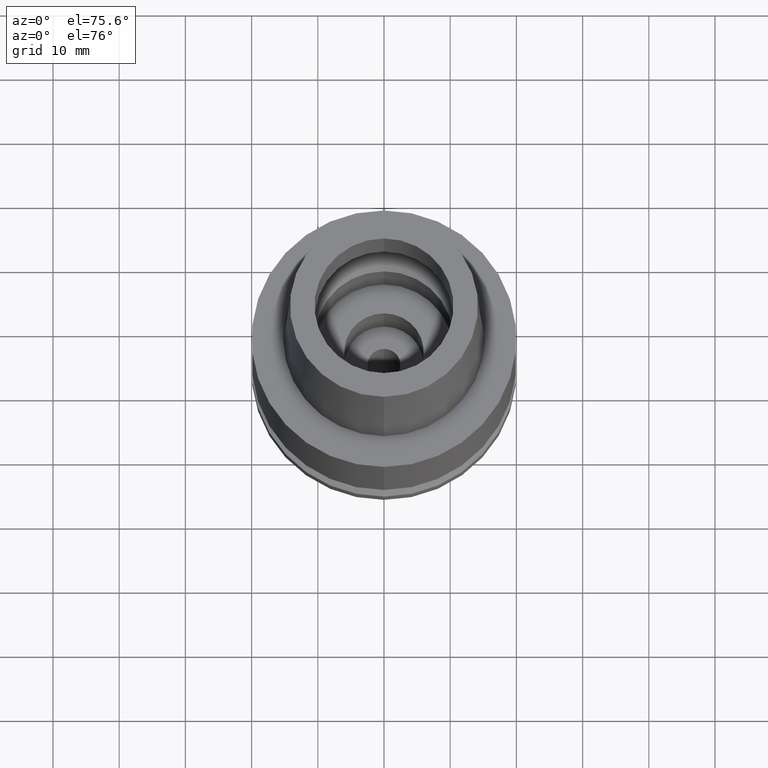
[diagram: clean part render]
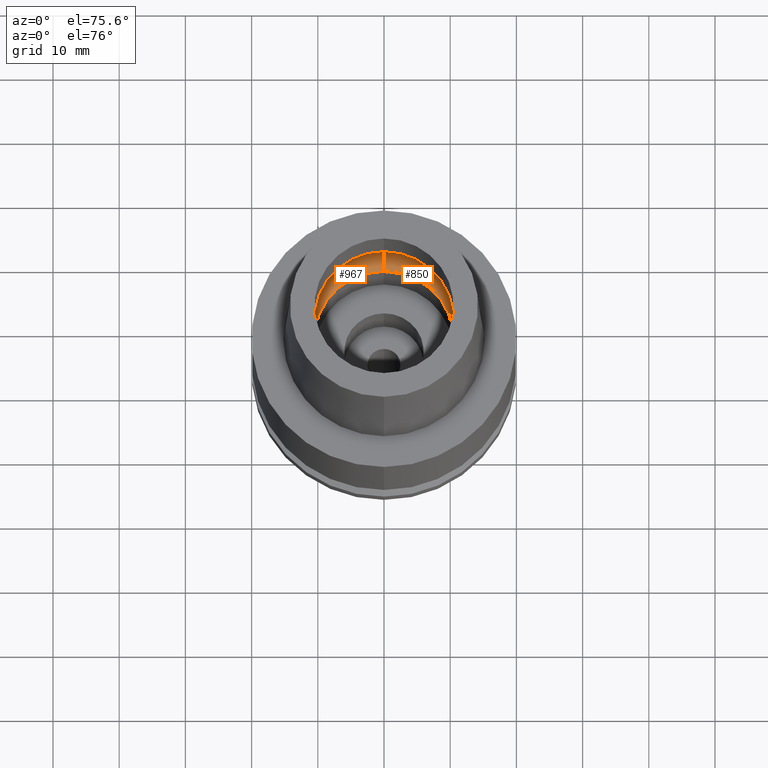
[diagram: same view with one multi-face feature highlighted, each face labeled with its STEP entity id]
A machine part, auxiliary view. The highlighted faces form ONE feature: a constant-radius fillet chain: 2 tangent blend faces with common blend radius 5 mm. The faces share edges in the B-rep.
Their STEP definitions:
[1] entity #967 (Torus):
#11 = CIRCLE ( 'NONE', #1672, 4.999999999999994671 ) ;
#27 = DIRECTION ( 'NONE',  ( 0.0000000000000000000, 1.000000000000000000, 0.0000000000000000000 ) ) ;
#86 = CIRCLE ( 'NONE', #1239, 4.999999999999994671 ) ;
#463 = DIRECTION ( 'NONE',  ( 1.000000000000000000, 0.0000000000000000000, 0.0000000000000000000 ) ) ;
#501 = DIRECTION ( 'NONE',  ( 0.0000000000000000000, 0.0000000000000000000, 1.000000000000000000 ) ) ;
#502 = AXIS2_PLACEMENT_3D ( 'NONE', #762, #1599, #2437 ) ;
#536 = VERTEX_POINT ( 'NONE', #1510 ) ;
#638 = EDGE_CURVE ( 'NONE', #2005, #536, #11, .T. ) ;
#741 = DIRECTION ( 'NONE',  ( -1.000000000000000000, 0.0000000000000000000, 0.0000000000000000000 ) ) ;
#758 = VERTEX_POINT ( 'NONE', #1592 ) ;
#762 = CARTESIAN_POINT ( 'NONE',  ( 0.0000000000000000000, 0.0000000000000000000, 4.225999999999999979 ) ) ;
#945 = VERTEX_POINT ( 'NONE', #1858 ) ;
#967 = ADVANCED_FACE ( 'NONE', ( #1431 ), #1461, .F. ) ;
#1001 = EDGE_CURVE ( 'NONE', #536, #758, #2368, .T. ) ;
#1056 = ORIENTED_EDGE ( 'NONE', *, *, #1001, .F. ) ;
#1061 = EDGE_LOOP ( 'NONE', ( #1056, #2480, #1296, #1438 ) ) ;
#1075 = DIRECTION ( 'NONE',  ( 0.0000000000000000000, 0.5500000000000007105, -0.8351646544245028281 ) ) ;
#1090 = CARTESIAN_POINT ( 'NONE',  ( 0.0000000000000000000, 7.750000000000000000, 4.225999999999999979 ) ) ;
#1209 = DIRECTION ( 'NONE',  ( 0.0000000000000000000, 0.0000000000000000000, 1.000000000000000000 ) ) ;
#1239 = AXIS2_PLACEMENT_3D ( 'NONE', #1090, #463, #1075 ) ;
#1296 = ORIENTED_EDGE ( 'NONE', *, *, #1689, .F. ) ;
#1381 = EDGE_CURVE ( 'NONE', #945, #758, #86, .T. ) ;
#1431 = FACE_OUTER_BOUND ( 'NONE', #1061, .T. ) ;
#1438 = ORIENTED_EDGE ( 'NONE', *, *, #1381, .T. ) ;
#1461 = TOROIDAL_SURFACE ( 'NONE', #2023, 7.750000000000000000, 5.000000000000000000 ) ;
#1510 = CARTESIAN_POINT ( 'NONE',  ( 0.0000000000000000000, -12.75000000000000000, 4.225999999999999979 ) ) ;
#1514 = CARTESIAN_POINT ( 'NONE',  ( 0.0000000000000000000, -10.50000000000000000, 0.05017672787749999364 ) ) ;
#1547 = CARTESIAN_POINT ( 'NONE',  ( 0.0000000000000000000, 0.0000000000000000000, 0.05017672787750999952 ) ) ;
#1592 = CARTESIAN_POINT ( 'NONE',  ( 0.0000000000000000000, 12.75000000000000000, 4.225999999999999979 ) ) ;
#1599 = DIRECTION ( 'NONE',  ( 0.0000000000000000000, 0.0000000000000000000, -1.000000000000000000 ) ) ;
#1663 = CIRCLE ( 'NONE', #1958, 10.50000000000000000 ) ;
#1672 = AXIS2_PLACEMENT_3D ( 'NONE', #2209, #741, #2239 ) ;
#1689 = EDGE_CURVE ( 'NONE', #945, #2005, #1663, .T. ) ;
#1858 = CARTESIAN_POINT ( 'NONE',  ( 0.0000000000000000000, 10.50000000000000000, 0.05017672787757000014 ) ) ;
#1958 = AXIS2_PLACEMENT_3D ( 'NONE', #1547, #501, #27 ) ;
#2005 = VERTEX_POINT ( 'NONE', #1514 ) ;
#2023 = AXIS2_PLACEMENT_3D ( 'NONE', #2667, #1209, #2465 ) ;
#2209 = CARTESIAN_POINT ( 'NONE',  ( 0.0000000000000000000, -7.750000000000000000, 4.225999999999999979 ) ) ;
#2239 = DIRECTION ( 'NONE',  ( 0.0000000000000000000, -0.5500000000000007105, -0.8351646544245028281 ) ) ;
#2368 = CIRCLE ( 'NONE', #502, 12.75000000000000000 ) ;
#2437 = DIRECTION ( 'NONE',  ( 0.0000000000000000000, -1.000000000000000000, 0.0000000000000000000 ) ) ;
#2465 = DIRECTION ( 'NONE',  ( 0.0000000000000000000, 1.000000000000000000, 0.0000000000000000000 ) ) ;
#2480 = ORIENTED_EDGE ( 'NONE', *, *, #638, .F. ) ;
#2667 = CARTESIAN_POINT ( 'NONE',  ( 0.0000000000000000000, 0.0000000000000000000, 4.225999999999999979 ) ) ;
[2] entity #850 (Torus):
#11 = CIRCLE ( 'NONE', #1672, 4.999999999999994671 ) ;
#30 = DIRECTION ( 'NONE',  ( 0.0000000000000000000, -1.000000000000000000, 0.0000000000000000000 ) ) ;
#86 = CIRCLE ( 'NONE', #1239, 4.999999999999994671 ) ;
#268 = CARTESIAN_POINT ( 'NONE',  ( 0.0000000000000000000, 0.0000000000000000000, 0.05017672787749999364 ) ) ;
#334 = ORIENTED_EDGE ( 'NONE', *, *, #1781, .F. ) ;
#463 = DIRECTION ( 'NONE',  ( 1.000000000000000000, 0.0000000000000000000, 0.0000000000000000000 ) ) ;
#467 = DIRECTION ( 'NONE',  ( 0.0000000000000000000, 1.000000000000000000, 0.0000000000000000000 ) ) ;
#536 = VERTEX_POINT ( 'NONE', #1510 ) ;
#610 = DIRECTION ( 'NONE',  ( 0.0000000000000000000, 1.000000000000000000, 0.0000000000000000000 ) ) ;
#638 = EDGE_CURVE ( 'NONE', #2005, #536, #11, .T. ) ;
#656 = AXIS2_PLACEMENT_3D ( 'NONE', #268, #1152, #30 ) ;
#741 = DIRECTION ( 'NONE',  ( -1.000000000000000000, 0.0000000000000000000, 0.0000000000000000000 ) ) ;
#758 = VERTEX_POINT ( 'NONE', #1592 ) ;
#791 = CIRCLE ( 'NONE', #1058, 12.75000000000000000 ) ;
#820 = CARTESIAN_POINT ( 'NONE',  ( 0.0000000000000000000, 0.0000000000000000000, 4.225999999999999979 ) ) ;
#850 = ADVANCED_FACE ( 'NONE', ( #1436 ), #2461, .F. ) ;
#857 = AXIS2_PLACEMENT_3D ( 'NONE', #820, #2469, #610 ) ;
#897 = ORIENTED_EDGE ( 'NONE', *, *, #1586, .F. ) ;
#945 = VERTEX_POINT ( 'NONE', #1858 ) ;
#1058 = AXIS2_PLACEMENT_3D ( 'NONE', #2132, #1682, #467 ) ;
#1075 = DIRECTION ( 'NONE',  ( 0.0000000000000000000, 0.5500000000000007105, -0.8351646544245028281 ) ) ;
#1090 = CARTESIAN_POINT ( 'NONE',  ( 0.0000000000000000000, 7.750000000000000000, 4.225999999999999979 ) ) ;
#1152 = DIRECTION ( 'NONE',  ( 0.0000000000000000000, 0.0000000000000000000, 1.000000000000000000 ) ) ;
#1239 = AXIS2_PLACEMENT_3D ( 'NONE', #1090, #463, #1075 ) ;
#1381 = EDGE_CURVE ( 'NONE', #945, #758, #86, .T. ) ;
#1436 = FACE_OUTER_BOUND ( 'NONE', #2251, .T. ) ;
#1510 = CARTESIAN_POINT ( 'NONE',  ( 0.0000000000000000000, -12.75000000000000000, 4.225999999999999979 ) ) ;
#1514 = CARTESIAN_POINT ( 'NONE',  ( 0.0000000000000000000, -10.50000000000000000, 0.05017672787749999364 ) ) ;
#1586 = EDGE_CURVE ( 'NONE', #2005, #945, #2486, .T. ) ;
#1592 = CARTESIAN_POINT ( 'NONE',  ( 0.0000000000000000000, 12.75000000000000000, 4.225999999999999979 ) ) ;
#1607 = ORIENTED_EDGE ( 'NONE', *, *, #638, .T. ) ;
#1672 = AXIS2_PLACEMENT_3D ( 'NONE', #2209, #741, #2239 ) ;
#1682 = DIRECTION ( 'NONE',  ( 0.0000000000000000000, 0.0000000000000000000, -1.000000000000000000 ) ) ;
#1781 = EDGE_CURVE ( 'NONE', #758, #536, #791, .T. ) ;
#1825 = ORIENTED_EDGE ( 'NONE', *, *, #1381, .F. ) ;
#1858 = CARTESIAN_POINT ( 'NONE',  ( 0.0000000000000000000, 10.50000000000000000, 0.05017672787757000014 ) ) ;
#2005 = VERTEX_POINT ( 'NONE', #1514 ) ;
#2132 = CARTESIAN_POINT ( 'NONE',  ( 0.0000000000000000000, 0.0000000000000000000, 4.225999999999999979 ) ) ;
#2209 = CARTESIAN_POINT ( 'NONE',  ( 0.0000000000000000000, -7.750000000000000000, 4.225999999999999979 ) ) ;
#2239 = DIRECTION ( 'NONE',  ( 0.0000000000000000000, -0.5500000000000007105, -0.8351646544245028281 ) ) ;
#2251 = EDGE_LOOP ( 'NONE', ( #897, #1607, #334, #1825 ) ) ;
#2461 = TOROIDAL_SURFACE ( 'NONE', #857, 7.750000000000000000, 5.000000000000000000 ) ;
#2469 = DIRECTION ( 'NONE',  ( 0.0000000000000000000, 0.0000000000000000000, 1.000000000000000000 ) ) ;
#2486 = CIRCLE ( 'NONE', #656, 10.50000000000000000 ) ;